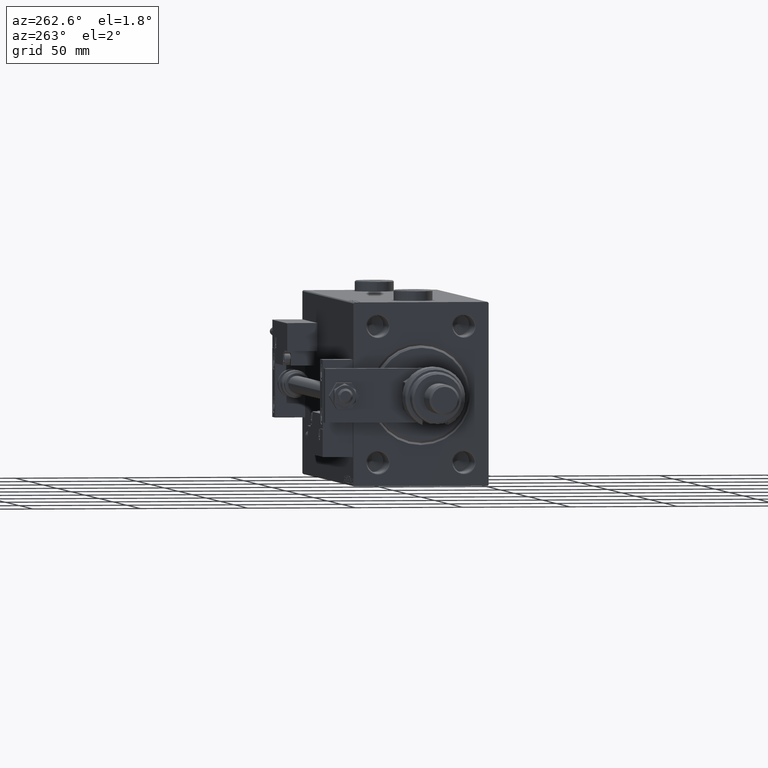
[diagram: clean part render]
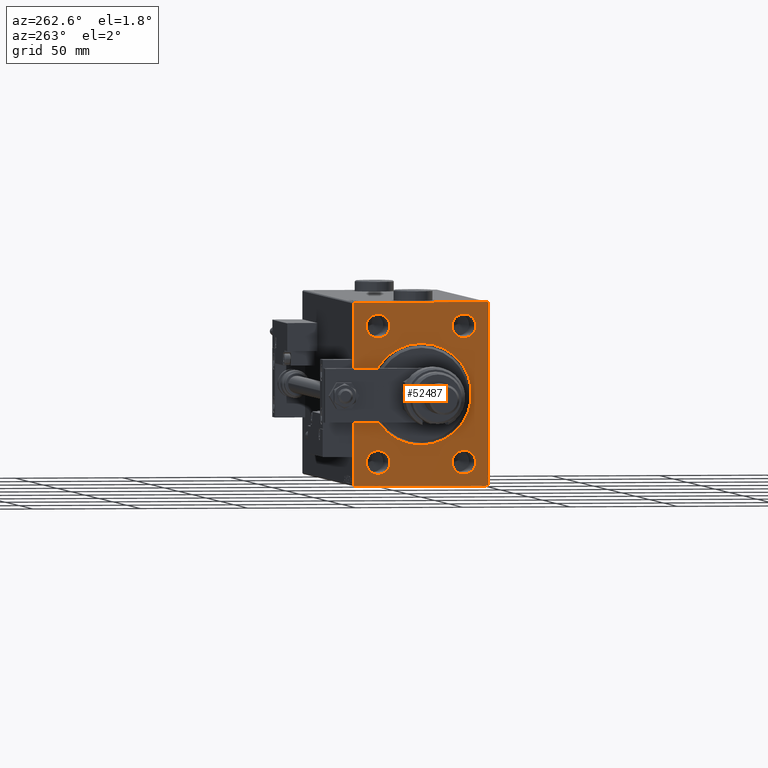
[diagram: same view with one face highlighted and labeled with its STEP entity id]
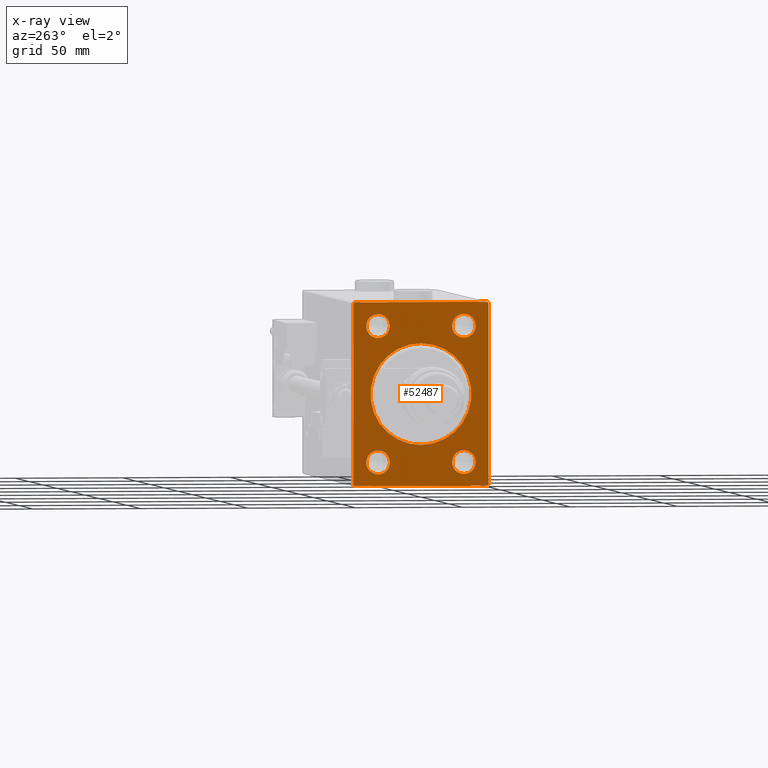
[diagram: x-ray of the same camera — body ghosted, the highlighted face saturated]
A machine part, auxiliary view. The second image highlights one B-rep face of the part: STEP entity #52487.
The next image is the same camera in x-ray: the body ghosted, the highlighted face saturated — about 0% of this face is hidden behind the body in this view.
In plain terms, the highlighted planar face has unit normal (1, 0, 0).
Its self-contained STEP definition (entity closure, byte-faithful):
#60 = LINE ( 'NONE', #43440, #26179 ) ;
#186 = ORIENTED_EDGE ( 'NONE', *, *, #25032, .F. ) ;
#409 = CARTESIAN_POINT ( 'NONE',  ( 0.000000000000000000, 31.50000000000000000, 42.49999999999999289 ) ) ;
#1116 = ORIENTED_EDGE ( 'NONE', *, *, #50618, .T. ) ;
#1416 = CIRCLE ( 'NONE', #15694, 5.500000000000032863 ) ;
#1560 = CARTESIAN_POINT ( 'NONE',  ( 0.000000000000000000, 0.000000000000000000, 0.000000000000000000 ) ) ;
#2196 = AXIS2_PLACEMENT_3D ( 'NONE', #1560, #18907, #26178 ) ;
#2354 = LINE ( 'NONE', #20266, #27660 ) ;
#2417 = VERTEX_POINT ( 'NONE', #27323 ) ;
#2475 = CARTESIAN_POINT ( 'NONE',  ( 0.000000000000000000, 0.000000000000000000, 0.000000000000000000 ) ) ;
#2775 = ORIENTED_EDGE ( 'NONE', *, *, #16431, .T. ) ;
#4187 = EDGE_CURVE ( 'NONE', #22912, #26324, #34845, .T. ) ;
#4616 = EDGE_CURVE ( 'NONE', #53691, #8834, #6851, .T. ) ;
#4848 = DIRECTION ( 'NONE',  ( 1.000000000000000000, 0.000000000000000000, 0.000000000000000000 ) ) ;
#5204 = CIRCLE ( 'NONE', #46350, 5.500000000000032863 ) ;
#5348 = DIRECTION ( 'NONE',  ( 0.000000000000000000, 1.000000000000000000, 0.000000000000000000 ) ) ;
#6208 = DIRECTION ( 'NONE',  ( 0.000000000000000000, 0.000000000000000000, -1.000000000000000000 ) ) ;
#6545 = DIRECTION ( 'NONE',  ( 1.000000000000000000, 0.000000000000000000, 0.000000000000000000 ) ) ;
#6851 = LINE ( 'NONE', #14691, #27752 ) ;
#7544 = CARTESIAN_POINT ( 'NONE',  ( 0.000000000000000000, -31.50000000000000000, 42.49999999999998579 ) ) ;
#7634 = CARTESIAN_POINT ( 'NONE',  ( 0.000000000000000000, -20.00000000000000355, 31.50000000000000000 ) ) ;
#8834 = VERTEX_POINT ( 'NONE', #25972 ) ;
#8990 = CARTESIAN_POINT ( 'NONE',  ( 0.000000000000000000, 19.99999999999999645, -25.99999999999996803 ) ) ;
#10122 = AXIS2_PLACEMENT_3D ( 'NONE', #18540, #22996, #6208 ) ;
#10140 = AXIS2_PLACEMENT_3D ( 'NONE', #53178, #23466, #14525 ) ;
#10246 = EDGE_CURVE ( 'NONE', #55324, #37879, #29649, .T. ) ;
#10415 = VECTOR ( 'NONE', #27272, 1000.000000000000114 ) ;
#10730 = AXIS2_PLACEMENT_3D ( 'NONE', #36578, #23140, #32104 ) ;
#10880 = AXIS2_PLACEMENT_3D ( 'NONE', #17184, #4848, #30323 ) ;
#11038 = DIRECTION ( 'NONE',  ( 0.000000000000000000, -1.632680918566406547E-16, 1.000000000000000000 ) ) ;
#11738 = LINE ( 'NONE', #7544, #52298 ) ;
#11974 = LINE ( 'NONE', #409, #12051 ) ;
#11979 = CARTESIAN_POINT ( 'NONE',  ( 0.000000000000000000, -20.00000000000000355, -31.50000000000000000 ) ) ;
#12038 = DIRECTION ( 'NONE',  ( 1.000000000000000000, 0.000000000000000000, 0.000000000000000000 ) ) ;
#12051 = VECTOR ( 'NONE', #15640, 1000.000000000000000 ) ;
#12604 = ORIENTED_EDGE ( 'NONE', *, *, #55097, .T. ) ;
#12800 = AXIS2_PLACEMENT_3D ( 'NONE', #7634, #28619, #42336 ) ;
#12926 = CARTESIAN_POINT ( 'NONE',  ( 0.000000000000000000, 19.99999999999999645, 25.99999999999996803 ) ) ;
#13002 = EDGE_CURVE ( 'NONE', #55163, #19770, #51271, .T. ) ;
#13434 = CARTESIAN_POINT ( 'NONE',  ( 0.000000000000000000, -31.00000000000002842, 42.49999999999998579 ) ) ;
#13905 = LINE ( 'NONE', #39391, #22173 ) ;
#14525 = DIRECTION ( 'NONE',  ( 0.000000000000000000, 0.000000000000000000, -1.000000000000000000 ) ) ;
#14691 = CARTESIAN_POINT ( 'NONE',  ( 0.000000000000000000, 31.50000000000001421, -42.50000000000000711 ) ) ;
#15196 = VERTEX_POINT ( 'NONE', #54258 ) ;
#15385 = LINE ( 'NONE', #32173, #35235 ) ;
#15640 = DIRECTION ( 'NONE',  ( 0.000000000000000000, -1.000000000000000000, -1.101411730778925171E-16 ) ) ;
#15694 = AXIS2_PLACEMENT_3D ( 'NONE', #44903, #6545, #23606 ) ;
#15832 = ORIENTED_EDGE ( 'NONE', *, *, #34819, .T. ) ;
#16056 = EDGE_LOOP ( 'NONE', ( #53756, #37384 ) ) ;
#16431 = EDGE_CURVE ( 'NONE', #53691, #42237, #15385, .T. ) ;
#16678 = DIRECTION ( 'NONE',  ( 1.000000000000000000, 0.000000000000000000, 0.000000000000000000 ) ) ;
#17162 = VERTEX_POINT ( 'NONE', #13434 ) ;
#17184 = CARTESIAN_POINT ( 'NONE',  ( 0.000000000000000000, -20.00000000000000355, 31.50000000000000000 ) ) ;
#17406 = EDGE_CURVE ( 'NONE', #28470, #55121, #11738, .T. ) ;
#17801 = FACE_BOUND ( 'NONE', #52299, .T. ) ;
#17836 = CIRCLE ( 'NONE', #32143, 23.49999999999996092 ) ;
#18107 = ORIENTED_EDGE ( 'NONE', *, *, #20683, .F. ) ;
#18167 = CIRCLE ( 'NONE', #12800, 5.500000000000032863 ) ;
#18540 = CARTESIAN_POINT ( 'NONE',  ( 0.000000000000000000, 19.99999999999999645, 31.50000000000000000 ) ) ;
#18907 = DIRECTION ( 'NONE',  ( 1.000000000000000000, 0.000000000000000000, 0.000000000000000000 ) ) ;
#19550 = DIRECTION ( 'NONE',  ( 1.000000000000000000, 0.000000000000000000, 0.000000000000000000 ) ) ;
#19770 = VERTEX_POINT ( 'NONE', #50420 ) ;
#20266 = CARTESIAN_POINT ( 'NONE',  ( 0.000000000000000000, -31.00000000000000000, -42.50000000000000711 ) ) ;
#20683 = EDGE_CURVE ( 'NONE', #2417, #42237, #60, .T. ) ;
#21101 = EDGE_CURVE ( 'NONE', #23803, #15196, #45042, .T. ) ;
#21695 = CARTESIAN_POINT ( 'NONE',  ( 0.000000000000000000, 19.99999999999999645, -31.50000000000000000 ) ) ;
#22173 = VECTOR ( 'NONE', #39116, 1000.000000000000114 ) ;
#22393 = VERTEX_POINT ( 'NONE', #45825 ) ;
#22912 = VERTEX_POINT ( 'NONE', #47282 ) ;
#22941 = ORIENTED_EDGE ( 'NONE', *, *, #35671, .T. ) ;
#22996 = DIRECTION ( 'NONE',  ( 1.000000000000000000, 0.000000000000000000, 0.000000000000000000 ) ) ;
#23089 = FACE_BOUND ( 'NONE', #16056, .T. ) ;
#23140 = DIRECTION ( 'NONE',  ( 1.000000000000000000, 0.000000000000000000, 0.000000000000000000 ) ) ;
#23466 = DIRECTION ( 'NONE',  ( 1.000000000000000000, 0.000000000000000000, 0.000000000000000000 ) ) ;
#23606 = DIRECTION ( 'NONE',  ( 0.000000000000000000, 0.000000000000000000, -1.000000000000000000 ) ) ;
#23803 = VERTEX_POINT ( 'NONE', #8990 ) ;
#23850 = ORIENTED_EDGE ( 'NONE', *, *, #4187, .T. ) ;
#24003 = DIRECTION ( 'NONE',  ( 0.000000000000000000, 0.000000000000000000, -1.000000000000000000 ) ) ;
#24418 = CARTESIAN_POINT ( 'NONE',  ( 0.000000000000000000, 31.50000000000001421, -42.00000000000000711 ) ) ;
#24555 = AXIS2_PLACEMENT_3D ( 'NONE', #25455, #12038, #42559 ) ;
#24886 = EDGE_CURVE ( 'NONE', #19770, #55163, #41562, .T. ) ;
#25032 = EDGE_CURVE ( 'NONE', #22393, #17162, #11974, .T. ) ;
#25455 = CARTESIAN_POINT ( 'NONE',  ( 0.000000000000000000, 19.99999999999999645, 31.50000000000000000 ) ) ;
#25972 = CARTESIAN_POINT ( 'NONE',  ( 0.000000000000000000, 31.50000000000000000, 42.00000000000002132 ) ) ;
#26178 = DIRECTION ( 'NONE',  ( 0.000000000000000000, 0.000000000000000000, -1.000000000000000000 ) ) ;
#26179 = VECTOR ( 'NONE', #5348, 1000.000000000000000 ) ;
#26324 = VERTEX_POINT ( 'NONE', #45665 ) ;
#27146 = ORIENTED_EDGE ( 'NONE', *, *, #17406, .F. ) ;
#27272 = DIRECTION ( 'NONE',  ( -0.000000000000000000, 0.7071067811865474617, 0.7071067811865474617 ) ) ;
#27323 = CARTESIAN_POINT ( 'NONE',  ( 0.000000000000000000, -31.00000000000000000, -42.50000000000000711 ) ) ;
#27660 = VECTOR ( 'NONE', #53322, 999.9999999999998863 ) ;
#27752 = VECTOR ( 'NONE', #11038, 1000.000000000000000 ) ;
#28470 = VERTEX_POINT ( 'NONE', #34196 ) ;
#28619 = DIRECTION ( 'NONE',  ( 1.000000000000000000, 0.000000000000000000, 0.000000000000000000 ) ) ;
#29329 = DIRECTION ( 'NONE',  ( 1.000000000000000000, 0.000000000000000000, 0.000000000000000000 ) ) ;
#29392 = ORIENTED_EDGE ( 'NONE', *, *, #10246, .T. ) ;
#29649 = CIRCLE ( 'NONE', #10880, 5.500000000000032863 ) ;
#30323 = DIRECTION ( 'NONE',  ( 0.000000000000000000, 0.000000000000000000, -1.000000000000000000 ) ) ;
#30613 = ORIENTED_EDGE ( 'NONE', *, *, #31399, .T. ) ;
#31178 = ORIENTED_EDGE ( 'NONE', *, *, #36937, .T. ) ;
#31372 = CARTESIAN_POINT ( 'NONE',  ( 0.000000000000000000, 31.00000000000001421, -42.50000000000000711 ) ) ;
#31399 = EDGE_CURVE ( 'NONE', #28470, #17162, #43264, .T. ) ;
#31588 = CARTESIAN_POINT ( 'NONE',  ( 0.000000000000000000, -20.00000000000000355, -37.00000000000003553 ) ) ;
#32104 = DIRECTION ( 'NONE',  ( 0.000000000000000000, 0.000000000000000000, -1.000000000000000000 ) ) ;
#32143 = AXIS2_PLACEMENT_3D ( 'NONE', #2475, #19550, #24003 ) ;
#32172 = ORIENTED_EDGE ( 'NONE', *, *, #48093, .T. ) ;
#32173 = CARTESIAN_POINT ( 'NONE',  ( 0.000000000000000000, 31.50000000000001421, -42.00000000000000711 ) ) ;
#33673 = CARTESIAN_POINT ( 'NONE',  ( 0.000000000000000000, -20.00000000000000355, 37.00000000000003553 ) ) ;
#34196 = CARTESIAN_POINT ( 'NONE',  ( 0.000000000000000000, -31.50000000000000000, 42.00000000000001421 ) ) ;
#34819 = EDGE_CURVE ( 'NONE', #41079, #36349, #5204, .T. ) ;
#34845 = CIRCLE ( 'NONE', #10730, 23.49999999999996092 ) ;
#35235 = VECTOR ( 'NONE', #41689, 1000.000000000000114 ) ;
#35313 = EDGE_LOOP ( 'NONE', ( #27146, #30613, #186, #22941, #39416, #2775, #18107, #31178 ) ) ;
#35671 = EDGE_CURVE ( 'NONE', #22393, #8834, #13905, .T. ) ;
#35953 = CIRCLE ( 'NONE', #43103, 5.500000000000032863 ) ;
#36349 = VERTEX_POINT ( 'NONE', #51879 ) ;
#36578 = CARTESIAN_POINT ( 'NONE',  ( 0.000000000000000000, 0.000000000000000000, 0.000000000000000000 ) ) ;
#36854 = EDGE_LOOP ( 'NONE', ( #1116, #29392 ) ) ;
#36937 = EDGE_CURVE ( 'NONE', #2417, #55121, #2354, .T. ) ;
#37384 = ORIENTED_EDGE ( 'NONE', *, *, #13002, .T. ) ;
#37879 = VERTEX_POINT ( 'NONE', #33673 ) ;
#39116 = DIRECTION ( 'NONE',  ( -0.000000000000000000, 0.7071067811865474617, -0.7071067811865474617 ) ) ;
#39341 = FACE_BOUND ( 'NONE', #36854, .T. ) ;
#39391 = CARTESIAN_POINT ( 'NONE',  ( 0.000000000000000000, 31.00000000000002842, 42.49999999999999289 ) ) ;
#39416 = ORIENTED_EDGE ( 'NONE', *, *, #4616, .F. ) ;
#39796 = CARTESIAN_POINT ( 'NONE',  ( 0.000000000000000000, -20.00000000000000355, 25.99999999999996803 ) ) ;
#39916 = PLANE ( 'NONE',  #2196 ) ;
#40187 = FACE_BOUND ( 'NONE', #40640, .T. ) ;
#40640 = EDGE_LOOP ( 'NONE', ( #12604, #15832 ) ) ;
#41079 = VERTEX_POINT ( 'NONE', #31588 ) ;
#41167 = EDGE_CURVE ( 'NONE', #26324, #22912, #17836, .T. ) ;
#41562 = CIRCLE ( 'NONE', #24555, 5.500000000000032863 ) ;
#41626 = ORIENTED_EDGE ( 'NONE', *, *, #41167, .T. ) ;
#41689 = DIRECTION ( 'NONE',  ( 0.000000000000000000, -0.7071067811865474617, -0.7071067811865474617 ) ) ;
#42237 = VERTEX_POINT ( 'NONE', #31372 ) ;
#42336 = DIRECTION ( 'NONE',  ( 0.000000000000000000, 0.000000000000000000, -1.000000000000000000 ) ) ;
#42559 = DIRECTION ( 'NONE',  ( 0.000000000000000000, 0.000000000000000000, -1.000000000000000000 ) ) ;
#42712 = DIRECTION ( 'NONE',  ( 0.000000000000000000, 0.000000000000000000, -1.000000000000000000 ) ) ;
#43103 = AXIS2_PLACEMENT_3D ( 'NONE', #21695, #16678, #42712 ) ;
#43264 = LINE ( 'NONE', #50584, #10415 ) ;
#43440 = CARTESIAN_POINT ( 'NONE',  ( 0.000000000000000000, -31.50000000000000000, -42.50000000000000711 ) ) ;
#44903 = CARTESIAN_POINT ( 'NONE',  ( 0.000000000000000000, -20.00000000000000355, -31.50000000000000000 ) ) ;
#45042 = CIRCLE ( 'NONE', #10140, 5.500000000000032863 ) ;
#45630 = DIRECTION ( 'NONE',  ( 0.000000000000000000, 0.000000000000000000, -1.000000000000000000 ) ) ;
#45665 = CARTESIAN_POINT ( 'NONE',  ( 0.000000000000000000, 2.877919977996275587E-15, -23.49999999999996092 ) ) ;
#45825 = CARTESIAN_POINT ( 'NONE',  ( 0.000000000000000000, 31.00000000000002842, 42.49999999999999289 ) ) ;
#46152 = DIRECTION ( 'NONE',  ( 0.000000000000000000, 0.000000000000000000, -1.000000000000000000 ) ) ;
#46350 = AXIS2_PLACEMENT_3D ( 'NONE', #11979, #29329, #46152 ) ;
#46770 = ORIENTED_EDGE ( 'NONE', *, *, #21101, .T. ) ;
#47282 = CARTESIAN_POINT ( 'NONE',  ( 0.000000000000000000, 0.000000000000000000, 23.49999999999996092 ) ) ;
#47753 = FACE_BOUND ( 'NONE', #54721, .T. ) ;
#48093 = EDGE_CURVE ( 'NONE', #15196, #23803, #35953, .T. ) ;
#50420 = CARTESIAN_POINT ( 'NONE',  ( 0.000000000000000000, 19.99999999999999645, 37.00000000000003553 ) ) ;
#50584 = CARTESIAN_POINT ( 'NONE',  ( 0.000000000000000000, -31.50000000000000000, 42.00000000000001421 ) ) ;
#50618 = EDGE_CURVE ( 'NONE', #37879, #55324, #18167, .T. ) ;
#51271 = CIRCLE ( 'NONE', #10122, 5.500000000000032863 ) ;
#51879 = CARTESIAN_POINT ( 'NONE',  ( 0.000000000000000000, -20.00000000000000355, -25.99999999999996803 ) ) ;
#52298 = VECTOR ( 'NONE', #45630, 1000.000000000000000 ) ;
#52299 = EDGE_LOOP ( 'NONE', ( #23850, #41626 ) ) ;
#52487 = ADVANCED_FACE ( 'NONE', ( #17801, #40187, #39341, #23089, #47753, #52523 ), #39916, .F. ) ;
#52523 = FACE_OUTER_BOUND ( 'NONE', #35313, .T. ) ;
#53178 = CARTESIAN_POINT ( 'NONE',  ( 0.000000000000000000, 19.99999999999999645, -31.50000000000000000 ) ) ;
#53322 = DIRECTION ( 'NONE',  ( -0.000000000000000000, -0.7071067811865425767, 0.7071067811865525687 ) ) ;
#53592 = CARTESIAN_POINT ( 'NONE',  ( 0.000000000000000000, -31.50000000000000000, -42.00000000000000000 ) ) ;
#53691 = VERTEX_POINT ( 'NONE', #24418 ) ;
#53756 = ORIENTED_EDGE ( 'NONE', *, *, #24886, .T. ) ;
#54258 = CARTESIAN_POINT ( 'NONE',  ( 0.000000000000000000, 19.99999999999999645, -37.00000000000003553 ) ) ;
#54721 = EDGE_LOOP ( 'NONE', ( #46770, #32172 ) ) ;
#55097 = EDGE_CURVE ( 'NONE', #36349, #41079, #1416, .T. ) ;
#55121 = VERTEX_POINT ( 'NONE', #53592 ) ;
#55163 = VERTEX_POINT ( 'NONE', #12926 ) ;
#55324 = VERTEX_POINT ( 'NONE', #39796 ) ;